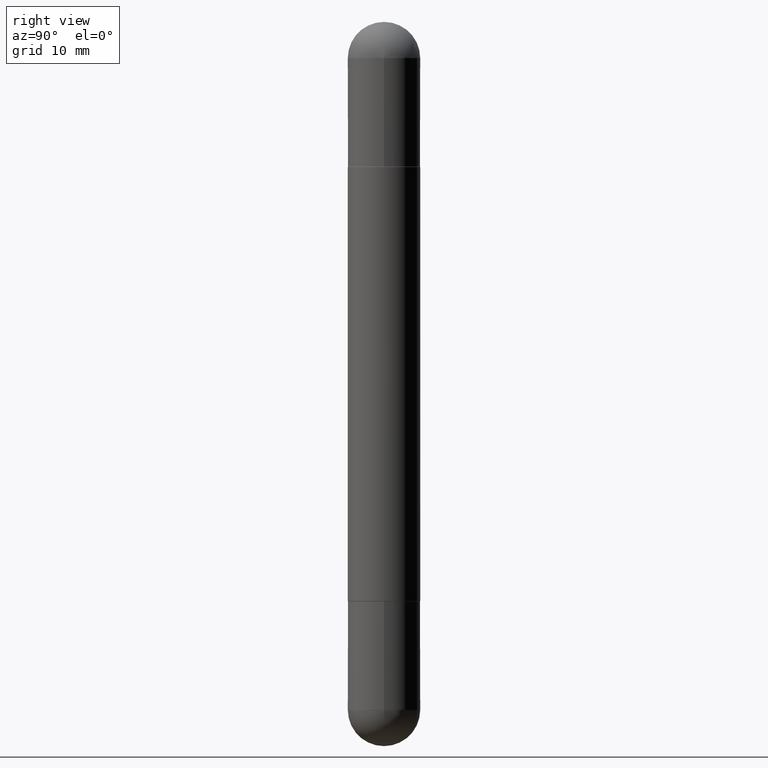
[diagram: clean part render]
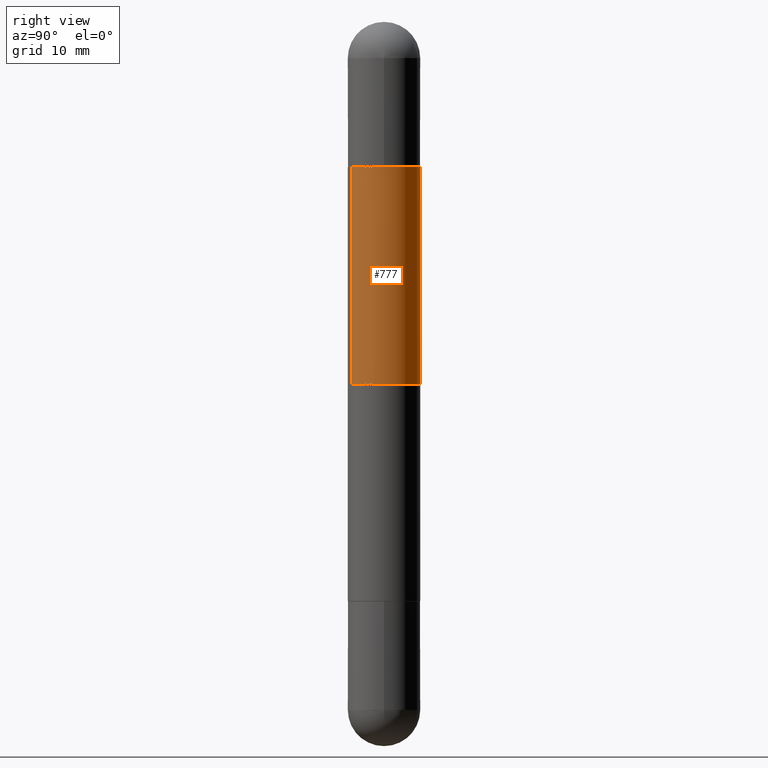
[diagram: same view with one face highlighted and labeled with its STEP entity id]
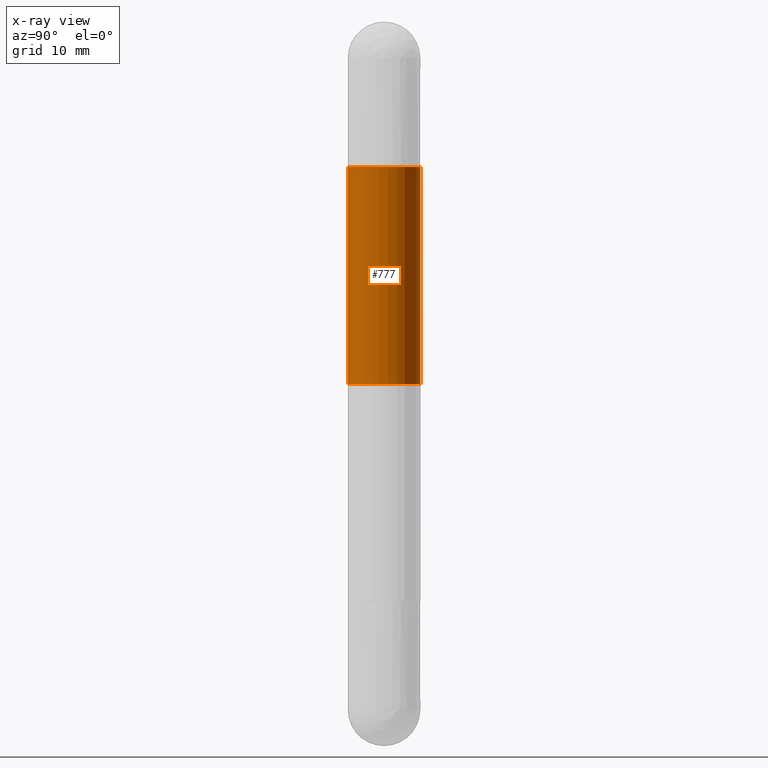
[diagram: x-ray of the same camera — body ghosted, the highlighted face saturated]
A machine part, right view. The second image highlights one B-rep face of the part: STEP entity #777.
The next image is the same camera in x-ray: the body ghosted, the highlighted face saturated — about 0% of this face is hidden behind the body in this view.
In plain terms, the highlighted cylindrical surface (edge-blend (fillet) strip) has radius 3.175 mm, axis along (-0, 0, -1).
Its self-contained STEP definition (entity closure, byte-faithful):
#38 = ORIENTED_EDGE ( 'NONE', *, *, #60, .F. ) ;
#50 = AXIS2_PLACEMENT_3D ( 'NONE', #82, #648, #705 ) ;
#60 = EDGE_CURVE ( 'NONE', #539, #232, #478, .T. ) ;
#61 = CARTESIAN_POINT ( 'NONE',  ( -8.728703347107364016E-16, -0.1250000000000072720, -0.5010000000000014442 ) ) ;
#65 = CIRCLE ( 'NONE', #695, 0.1250000000000001388 ) ;
#82 = CARTESIAN_POINT ( 'NONE',  ( 0.000000000000000000, 0.000000000000000000, -2.500000000000000444 ) ) ;
#90 = CYLINDRICAL_SURFACE ( 'NONE', #50, 0.1250000000000001388 ) ;
#112 = DIRECTION ( 'NONE',  ( -2.446114484898439135E-29, 3.490556690175946618E-15, -1.000000000000000000 ) ) ;
#153 = FACE_OUTER_BOUND ( 'NONE', #357, .T. ) ;
#232 = VERTEX_POINT ( 'NONE', #707 ) ;
#251 = DIRECTION ( 'NONE',  ( -1.000000000000000000, 0.000000000000000000, 0.000000000000000000 ) ) ;
#278 = VECTOR ( 'NONE', #112, 39.37007874015748143 ) ;
#314 = AXIS2_PLACEMENT_3D ( 'NONE', #560, #803, #557 ) ;
#345 = ORIENTED_EDGE ( 'NONE', *, *, #517, .F. ) ;
#357 = EDGE_LOOP ( 'NONE', ( #643, #38, #801, #345 ) ) ;
#358 = CARTESIAN_POINT ( 'NONE',  ( -8.728703347107444874E-16, -0.1250000000000044964, -1.250000000000000222 ) ) ;
#377 = LINE ( 'NONE', #387, #621 ) ;
#387 = CARTESIAN_POINT ( 'NONE',  ( -8.728703347107842263E-16, -0.1250000000000001388, -2.500000000000001332 ) ) ;
#408 = VERTEX_POINT ( 'NONE', #453 ) ;
#432 = CARTESIAN_POINT ( 'NONE',  ( 8.575622497214423328E-16, 0.1250000000000001388, -2.500000000000000000 ) ) ;
#453 = CARTESIAN_POINT ( 'NONE',  ( 8.575622497214909463E-16, 0.1249999999999957673, -1.250000000000000222 ) ) ;
#474 = EDGE_CURVE ( 'NONE', #232, #408, #690, .T. ) ;
#478 = CIRCLE ( 'NONE', #314, 0.1250000000000002776 ) ;
#499 = DIRECTION ( 'NONE',  ( -2.446114484898439135E-29, 3.490556690175946618E-15, -1.000000000000000000 ) ) ;
#517 = EDGE_CURVE ( 'NONE', #408, #537, #65, .T. ) ;
#537 = VERTEX_POINT ( 'NONE', #358 ) ;
#539 = VERTEX_POINT ( 'NONE', #61 ) ;
#557 = DIRECTION ( 'NONE',  ( -6.982962677686265922E-15, -1.000000000000000000, -3.278217592397108762E-15 ) ) ;
#560 = CARTESIAN_POINT ( 'NONE',  ( 4.889782855311978936E-29, -6.977622823661715081E-15, -0.5010000000000010001 ) ) ;
#574 = EDGE_CURVE ( 'NONE', #539, #537, #377, .T. ) ;
#612 = DIRECTION ( 'NONE',  ( -0.000000000000000000, -0.000000000000000000, -1.000000000000000000 ) ) ;
#621 = VECTOR ( 'NONE', #499, 39.37007874015748143 ) ;
#643 = ORIENTED_EDGE ( 'NONE', *, *, #474, .F. ) ;
#648 = DIRECTION ( 'NONE',  ( -2.446114484898439135E-29, 3.490556690175946223E-15, -1.000000000000000000 ) ) ;
#690 = LINE ( 'NONE', #432, #278 ) ;
#695 = AXIS2_PLACEMENT_3D ( 'NONE', #807, #612, #251 ) ;
#705 = DIRECTION ( 'NONE',  ( -6.982962677686265922E-15, -1.000000000000000000, -4.370956789862816416E-15 ) ) ;
#707 = CARTESIAN_POINT ( 'NONE',  ( 8.575622497214919324E-16, 0.1249999999999932693, -0.5010000000000006670 ) ) ;
#777 = ADVANCED_FACE ( 'NONE', ( #153 ), #90, .T. ) ;
#801 = ORIENTED_EDGE ( 'NONE', *, *, #574, .T. ) ;
#803 = DIRECTION ( 'NONE',  ( 2.446114484898439135E-29, -3.490556690175946223E-15, 1.000000000000000000 ) ) ;
#807 = CARTESIAN_POINT ( 'NONE',  ( 3.057643106123049759E-29, -4.363195862719933568E-15, -1.250000000000000222 ) ) ;